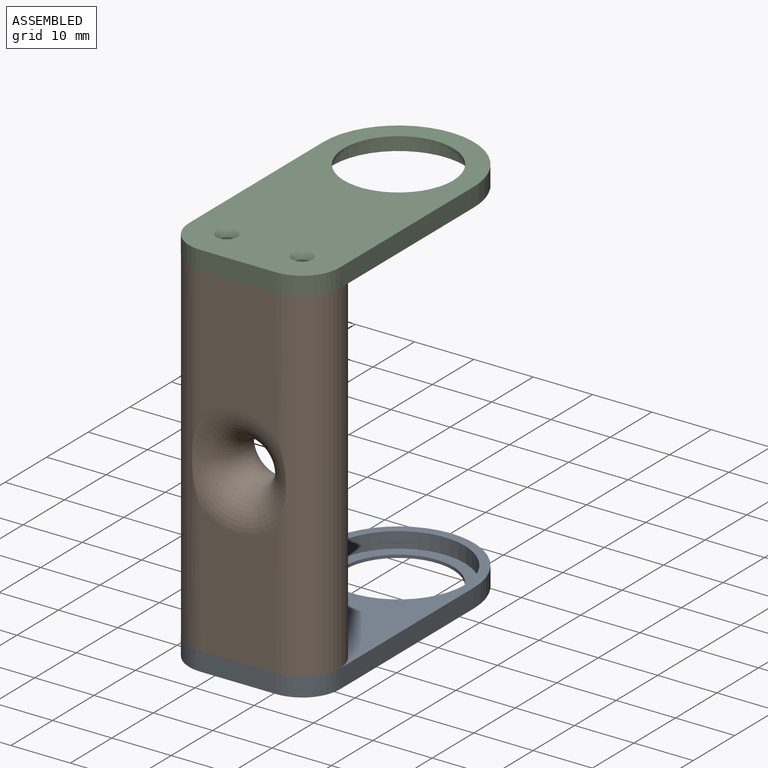
[diagram: assembled view]
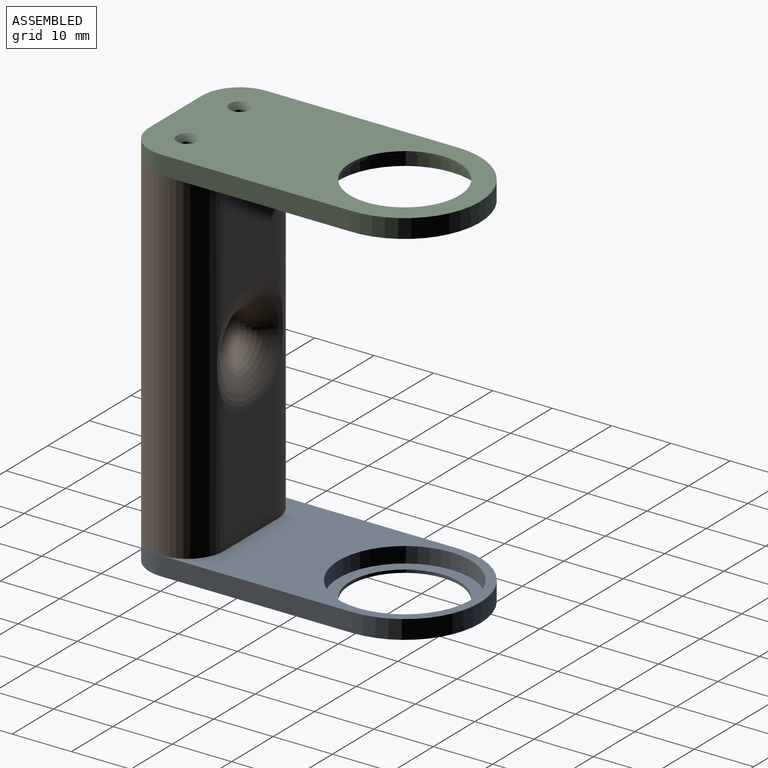
[diagram: assembled view, second angle]
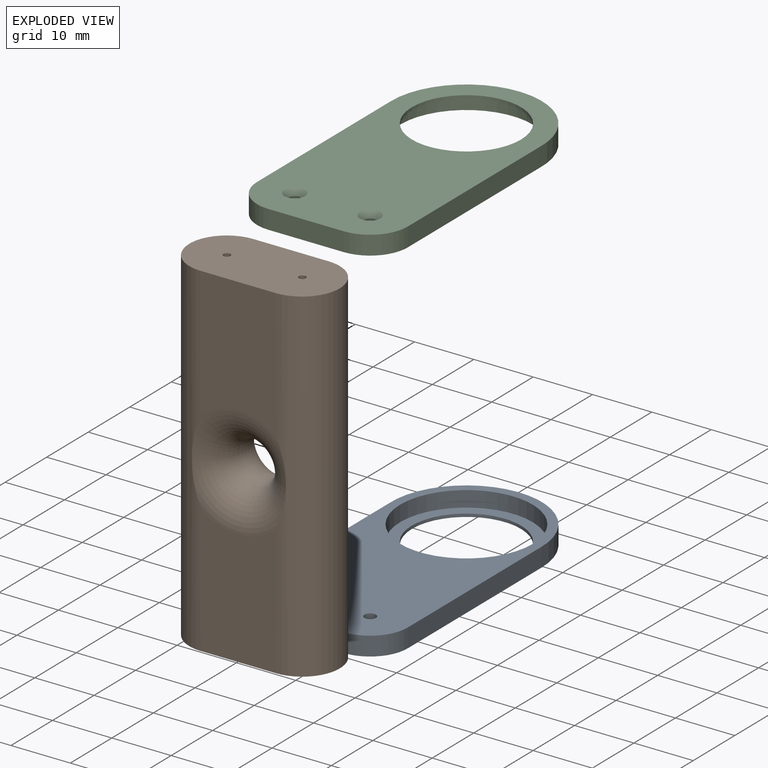
[diagram: exploded view]
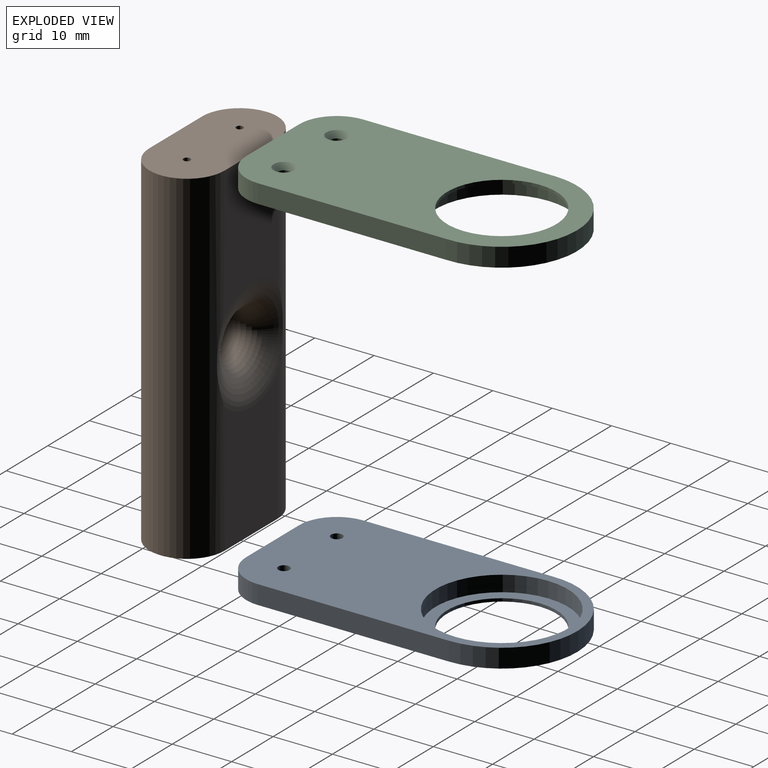
[diagram: exploded view, second angle]
ASSEMBLY  parts=3 mates=2
PART A: 16 faces, bbox 25.4x51.3x3.2 mm
  f0: plane 31.75x3.18mm, normal (-1,0,0), area 100.8mm2, adj f1,f6,f8,f9
  f1: cylinder r=6.35mm len=6.35mm, axis (0,0,-1), area 31.7mm2, adj f0,f2,f8,f9
  f2: plane 12.71x3.18mm, normal (0,-1,0), area 40.3mm2, adj f1,f3,f8,f9
  f3: cylinder r=6.35mm len=6.35mm, axis (0,0,-1), area 31.7mm2, adj f2,f4,f8,f9
  f4: plane 6.36x3.18mm, normal (1,0,0), area 20.2mm2, adj f3,f5,f8,f9
  f5: plane 25.91x3.18mm, normal (1,0,0), area 82.3mm2, adj f4,f6,f8,f9
  f6: cylinder r=12.71mm len=25.42mm, axis (0,0,-1), area 128.4mm2, adj f0,f5,f8,f9
  f7: cylinder r=11.18mm len=22.35mm, axis (0,0,-1), area 187.3mm2, adj f8,f11
  f8: plane 51.32x25.42mm, normal (0,0,1), area 819.2mm2, adj f0,f1,f2,f3,f4,f5,f6,f7
  f9: plane 51.32x25.42mm, normal (0,0,-1), area 931.8mm2, adj f0,f1,f2,f3,f4,f5,f6,f10
  f10: cylinder r=9.21mm len=18.42mm, axis (0,0,-1), area 29.4mm2, adj f9,f11
  f11: plane 22.35x22.35mm, normal (0,0,1), area 126.1mm2, adj f7,f10
  f12: cylinder r=0.97mm len=2.27mm, axis (0,0,-1), area 13.8mm2, adj f8,f13
  f13: cone r=0.97mm half-angle=41deg, axis (0,0,-1), area 10.2mm2, adj f9,f12
  f14: cylinder r=0.97mm len=2.27mm, axis (0,0,-1), area 13.8mm2, adj f8,f15
  f15: cone r=0.97mm half-angle=41deg, axis (0,0,-1), area 10.2mm2, adj f9,f14
PART B: 19 faces, bbox 30.4x12.7x57.9 mm
  f0: plane 21.85x12.68mm, normal (0,-1,0), area 256mm2, adj f2,f5,f6,f11
  f1: plane 21.87x12.7mm, normal (0,1,0), area 256.5mm2, adj f2,f3,f6,f11
  f2: cylinder r=6.35mm len=57.91mm, axis (0,0,-1), area 1124.9mm2, adj f0,f1,f6,f11,f12,f13,f14
  f3: cylinder r=6.35mm len=57.91mm, axis (0,0,-1), area 532.4mm2, adj f1,f4,f6,f11,f13,f14
  f4: plane 57.91x0.52mm, normal (-1,0,0), area 30.1mm2, adj f3,f5,f6,f14
  f5: cylinder r=6.35mm len=57.91mm, axis (0,0,-1), area 562.4mm2, adj f0,f4,f6,f11,f12,f14
  f6: plane 25.38x12.7mm, normal (0,0,-1), area 285.6mm2, adj f0,f1,f2,f3,f4,f5,f7,f9
  f7: cylinder r=0.6mm len=7.3mm, axis (0,0,-1), area 27.3mm2, adj f6,f8
  f8: cone r=0mm half-angle=59deg, axis (0,0,-1), area 1.3mm2, adj f7
  f9: cylinder r=0.6mm len=7.3mm, axis (0,0,-1), area 27.3mm2, adj f6,f10
  f10: cone r=0mm half-angle=59deg, axis (0,0,-1), area 1.3mm2, adj f9
  f11: torus R=9.53mm, axis (0,1,0), area 621.8mm2, adj f0,f1,f2,f3,f5,f12,f13
  f12: plane 21.85x12.68mm, normal (0,-1,0), area 256mm2, adj f2,f5,f11,f14
  f13: plane 21.87x12.7mm, normal (0,1,0), area 256.5mm2, adj f2,f3,f11,f14
  f14: plane 25.38x12.7mm, normal (0,0,1), area 285.6mm2, adj f2,f3,f4,f5,f12,f13,f15,f17
  f15: cylinder r=0.6mm len=7.3mm, axis (0,0,1), area 27.3mm2, adj f14,f16
  f16: cone r=0mm half-angle=59deg, axis (0,0,1), area 1.3mm2, adj f15
  f17: cylinder r=0.6mm len=7.3mm, axis (0,0,1), area 27.3mm2, adj f14,f18
  f18: cone r=0mm half-angle=59deg, axis (0,0,1), area 1.3mm2, adj f17
PART C: same geometry as A
PLACE A t=(69.88,-15.8,4.25)mm
PLACE B t=(69.89,-15.8,4.25)mm
PLACE C rot(axis=(0,-1,0),180deg) t=(-438.75,-15.8,68.51)mm
MATE fastened B.f12 <-> C.f2  axis (0,-1,0) through (-184.44,-87.53,65.34)mm
MATE fastened A.f2 <-> B.f0  axis (0,-1,0) through (-184.44,-87.53,7.43)mm
